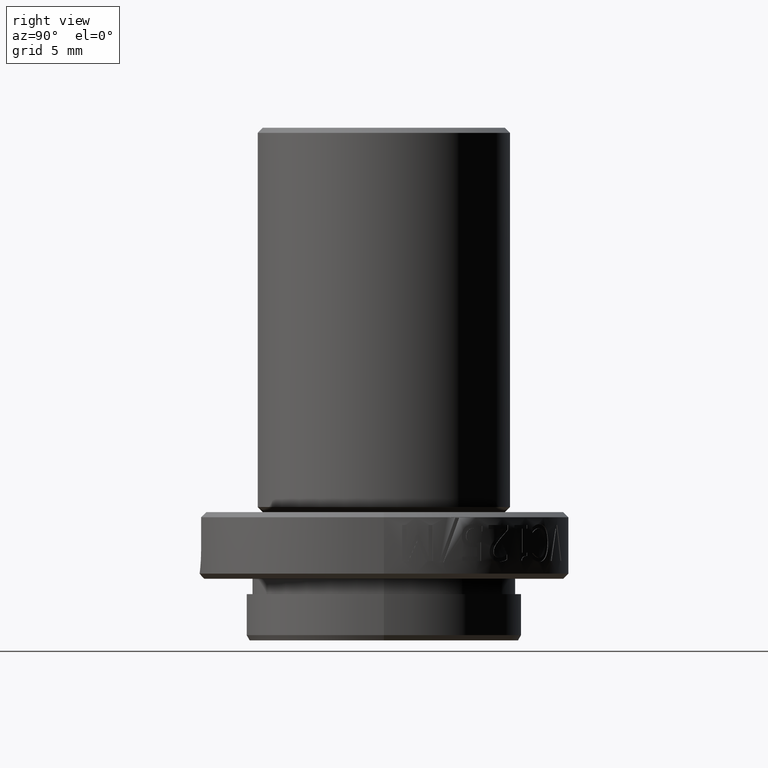
[diagram: clean part render]
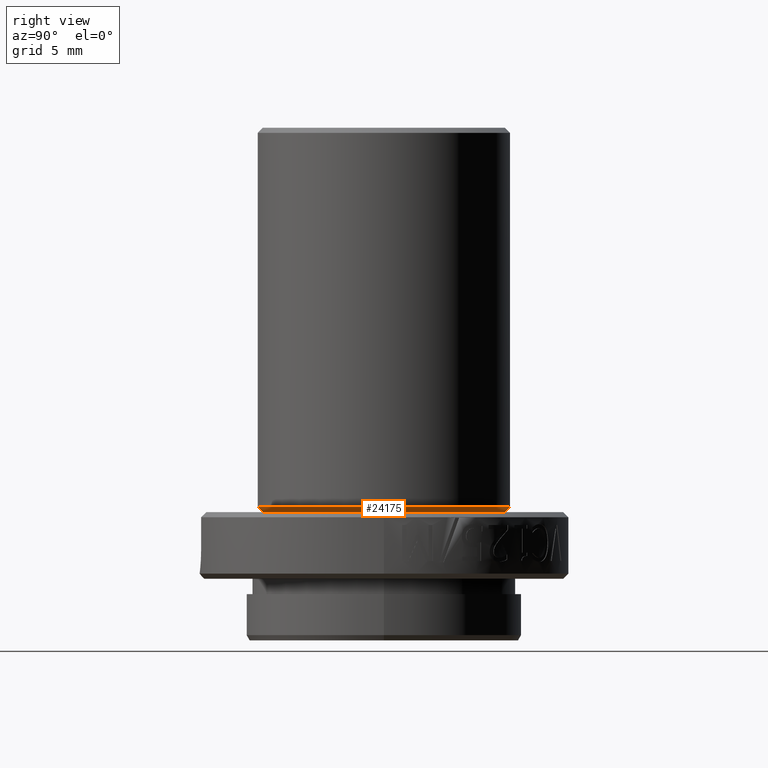
[diagram: same view with one face highlighted and labeled with its STEP entity id]
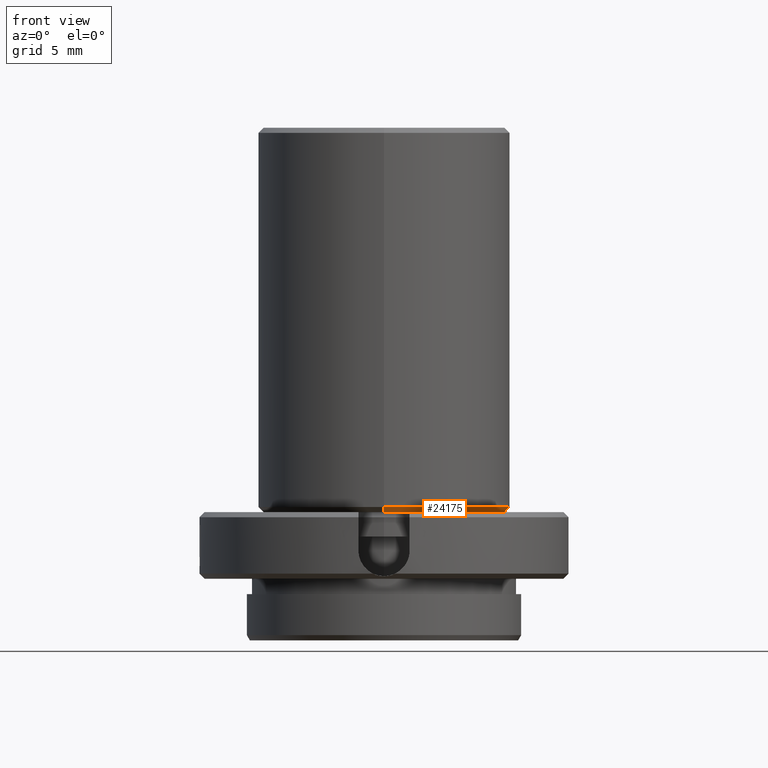
[diagram: same view with one face highlighted and labeled with its STEP entity id]
A machine part, right view. The second image highlights one B-rep face of the part: STEP entity #24175.
A second angle (front view) of the same face is appended — the face is thin or edge-on in the first view.
In plain terms, the highlighted conical surface has half-angle 45 deg.
Its self-contained STEP definition (entity closure, byte-faithful):
#242 = VERTEX_POINT ( 'NONE', #20418 ) ;
#278 = DIRECTION ( 'NONE',  ( 1.110223024625155924E-16, -1.000000000000000000, 0.000000000000000000 ) ) ;
#636 = EDGE_LOOP ( 'NONE', ( #12978, #18240, #34635, #6597 ) ) ;
#4270 = LINE ( 'NONE', #12047, #27802 ) ;
#4474 = VERTEX_POINT ( 'NONE', #6292 ) ;
#6292 = CARTESIAN_POINT ( 'NONE',  ( -1.651151855805301980E-16, 0.2460629921259843422, -0.3299999999999999045 ) ) ;
#6597 = ORIENTED_EDGE ( 'NONE', *, *, #33405, .F. ) ;
#7534 = LINE ( 'NONE', #16639, #12531 ) ;
#8118 = DIRECTION ( 'NONE',  ( 8.205284339842318629E-17, -0.7071067811865476838, 0.7071067811865473507 ) ) ;
#8524 = DIRECTION ( 'NONE',  ( -5.017941502810104978E-18, 1.292506970446266923E-16, -1.000000000000000000 ) ) ;
#9257 = DIRECTION ( 'NONE',  ( 1.163920315359503056E-17, 0.7071067811865474617, 0.7071067811865475727 ) ) ;
#11199 = CARTESIAN_POINT ( 'NONE',  ( -1.377967056438875904E-16, -1.292506970446187374E-18, -0.3299999999999999045 ) ) ;
#11553 = CIRCLE ( 'NONE', #23262, 0.2360629921259843333 ) ;
#12047 = CARTESIAN_POINT ( 'NONE',  ( -1.349811600109595110E-16, 0.2460629921259843422, -0.3299999999999999045 ) ) ;
#12531 = VECTOR ( 'NONE', #8118, 39.37007874015748854 ) ;
#12978 = ORIENTED_EDGE ( 'NONE', *, *, #23007, .F. ) ;
#16639 = CARTESIAN_POINT ( 'NONE',  ( -1.104782257072449582E-16, -0.2460629921259843422, -0.3299999999999999045 ) ) ;
#17024 = DIRECTION ( 'NONE',  ( 5.017941502810104978E-18, -1.292506970446266923E-16, 1.000000000000000000 ) ) ;
#17863 = EDGE_CURVE ( 'NONE', #34644, #4474, #4270, .T. ) ;
#18240 = ORIENTED_EDGE ( 'NONE', *, *, #17863, .T. ) ;
#19563 = EDGE_CURVE ( 'NONE', #4474, #242, #37100, .T. ) ;
#19779 = CARTESIAN_POINT ( 'NONE',  ( -1.377967056438875904E-16, -1.292506970446187374E-18, -0.3299999999999999045 ) ) ;
#20418 = CARTESIAN_POINT ( 'NONE',  ( -7.851265148914856609E-17, -0.2460629921259842590, -0.3299999999999999045 ) ) ;
#22721 = DIRECTION ( 'NONE',  ( -1.110223024625155924E-16, 1.000000000000000000, 0.000000000000000000 ) ) ;
#23007 = EDGE_CURVE ( 'NONE', #34644, #25610, #11553, .T. ) ;
#23262 = AXIS2_PLACEMENT_3D ( 'NONE', #25770, #8524, #37371 ) ;
#24175 = ADVANCED_FACE ( 'NONE', ( #30409 ), #32141, .T. ) ;
#24477 = CARTESIAN_POINT ( 'NONE',  ( -1.110584269270715856E-16, -0.2360629921259842778, -0.3399999999999998579 ) ) ;
#25610 = VERTEX_POINT ( 'NONE', #24477 ) ;
#25631 = CARTESIAN_POINT ( 'NONE',  ( -1.350634616057346683E-16, 0.2360629921259842778, -0.3399999999999998579 ) ) ;
#25769 = DIRECTION ( 'NONE',  ( -5.017941502810104978E-18, 1.292506970446266923E-16, -1.000000000000000000 ) ) ;
#25770 = CARTESIAN_POINT ( 'NONE',  ( -1.378468850589156876E-16, 7.961521423648022727E-32, -0.3399999999999998579 ) ) ;
#27802 = VECTOR ( 'NONE', #9257, 39.37007874015748143 ) ;
#30409 = FACE_OUTER_BOUND ( 'NONE', #636, .T. ) ;
#31911 = AXIS2_PLACEMENT_3D ( 'NONE', #11199, #25769, #22721 ) ;
#32141 = CONICAL_SURFACE ( 'NONE', #32567, 0.2460629921259843422, 0.7853981633974482790 ) ;
#32567 = AXIS2_PLACEMENT_3D ( 'NONE', #19779, #17024, #278 ) ;
#33405 = EDGE_CURVE ( 'NONE', #25610, #242, #7534, .T. ) ;
#34635 = ORIENTED_EDGE ( 'NONE', *, *, #19563, .T. ) ;
#34644 = VERTEX_POINT ( 'NONE', #25631 ) ;
#37100 = CIRCLE ( 'NONE', #31911, 0.2460629921259843422 ) ;
#37371 = DIRECTION ( 'NONE',  ( -1.110223024625156417E-16, 1.000000000000000000, 0.000000000000000000 ) ) ;